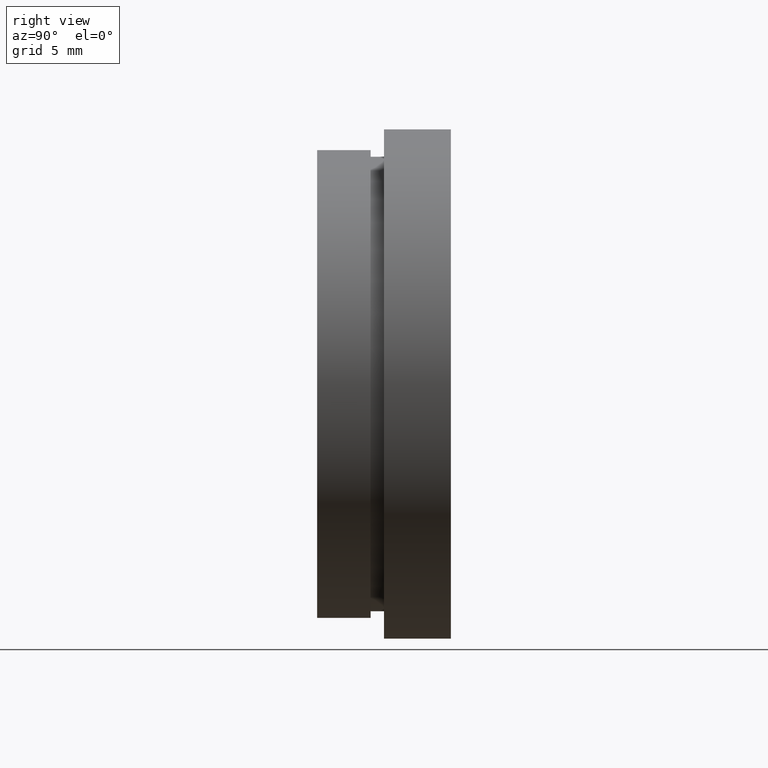
[diagram: clean part render]
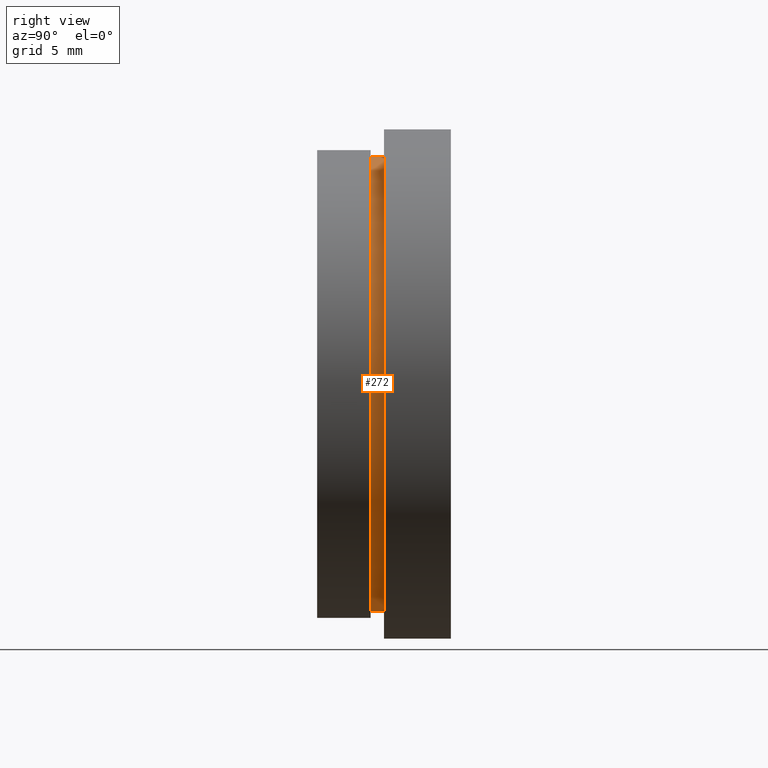
[diagram: same view with one face highlighted and labeled with its STEP entity id]
A machine part, right view. The second image highlights one B-rep face of the part: STEP entity #272.
In plain terms, the highlighted cylindrical surface (partial cylindrical patch) has radius 17 mm, axis along (-0, 1, -0).
Its self-contained STEP definition (entity closure, byte-faithful):
#21 = EDGE_LOOP ( 'NONE', ( #393, #261, #398, #172 ) ) ;
#33 = VERTEX_POINT ( 'NONE', #484 ) ;
#46 = LINE ( 'NONE', #444, #361 ) ;
#49 = EDGE_CURVE ( 'NONE', #539, #33, #46, .T. ) ;
#54 = CIRCLE ( 'NONE', #317, 17.00000000000000000 ) ;
#110 = CARTESIAN_POINT ( 'NONE',  ( 2.081899558550500300E-015, 13.74468085106383300, -17.00000000000000000 ) ) ;
#114 = EDGE_CURVE ( 'NONE', #546, #188, #396, .T. ) ;
#136 = CYLINDRICAL_SURFACE ( 'NONE', #587, 17.00000000000000000 ) ;
#172 = ORIENTED_EDGE ( 'NONE', *, *, #49, .F. ) ;
#174 = DIRECTION ( 'NONE',  ( 0.0000000000000000000, 0.0000000000000000000, 1.000000000000000000 ) ) ;
#188 = VERTEX_POINT ( 'NONE', #274 ) ;
#215 = EDGE_CURVE ( 'NONE', #539, #546, #54, .T. ) ;
#232 = CARTESIAN_POINT ( 'NONE',  ( 0.0000000000000000000, 4.000000000000000000, 17.00000000000000000 ) ) ;
#251 = EDGE_CURVE ( 'NONE', #33, #188, #611, .T. ) ;
#261 = ORIENTED_EDGE ( 'NONE', *, *, #114, .T. ) ;
#272 = ADVANCED_FACE ( 'NONE', ( #459 ), #136, .T. ) ;
#274 = CARTESIAN_POINT ( 'NONE',  ( 2.081899558550500300E-015, 5.000000000000000900, -17.00000000000000000 ) ) ;
#289 = DIRECTION ( 'NONE',  ( -0.0000000000000000000, 1.000000000000000000, -0.0000000000000000000 ) ) ;
#292 = DIRECTION ( 'NONE',  ( -0.0000000000000000000, 1.000000000000000000, -0.0000000000000000000 ) ) ;
#297 = DIRECTION ( 'NONE',  ( -0.0000000000000000000, 1.000000000000000000, -0.0000000000000000000 ) ) ;
#303 = DIRECTION ( 'NONE',  ( 0.0000000000000000000, 0.0000000000000000000, 1.000000000000000000 ) ) ;
#317 = AXIS2_PLACEMENT_3D ( 'NONE', #373, #292, #174 ) ;
#321 = VECTOR ( 'NONE', #596, 1000.000000000000000 ) ;
#361 = VECTOR ( 'NONE', #289, 1000.000000000000000 ) ;
#373 = CARTESIAN_POINT ( 'NONE',  ( 0.0000000000000000000, 4.000000000000000000, 0.0000000000000000000 ) ) ;
#393 = ORIENTED_EDGE ( 'NONE', *, *, #215, .T. ) ;
#396 = LINE ( 'NONE', #110, #321 ) ;
#398 = ORIENTED_EDGE ( 'NONE', *, *, #251, .F. ) ;
#403 = CARTESIAN_POINT ( 'NONE',  ( 0.0000000000000000000, 5.000000000000000900, 0.0000000000000000000 ) ) ;
#432 = AXIS2_PLACEMENT_3D ( 'NONE', #403, #297, #528 ) ;
#444 = CARTESIAN_POINT ( 'NONE',  ( 0.0000000000000000000, 13.74468085106383300, 17.00000000000000000 ) ) ;
#459 = FACE_OUTER_BOUND ( 'NONE', #21, .T. ) ;
#484 = CARTESIAN_POINT ( 'NONE',  ( 0.0000000000000000000, 5.000000000000000900, 17.00000000000000000 ) ) ;
#501 = DIRECTION ( 'NONE',  ( -0.0000000000000000000, 1.000000000000000000, -0.0000000000000000000 ) ) ;
#512 = CARTESIAN_POINT ( 'NONE',  ( 0.0000000000000000000, 13.74468085106383300, 0.0000000000000000000 ) ) ;
#528 = DIRECTION ( 'NONE',  ( 0.0000000000000000000, 0.0000000000000000000, 1.000000000000000000 ) ) ;
#539 = VERTEX_POINT ( 'NONE', #232 ) ;
#546 = VERTEX_POINT ( 'NONE', #598 ) ;
#587 = AXIS2_PLACEMENT_3D ( 'NONE', #512, #501, #303 ) ;
#596 = DIRECTION ( 'NONE',  ( -0.0000000000000000000, 1.000000000000000000, -0.0000000000000000000 ) ) ;
#598 = CARTESIAN_POINT ( 'NONE',  ( 2.081899558550500300E-015, 4.000000000000000000, -17.00000000000000000 ) ) ;
#611 = CIRCLE ( 'NONE', #432, 17.00000000000000000 ) ;